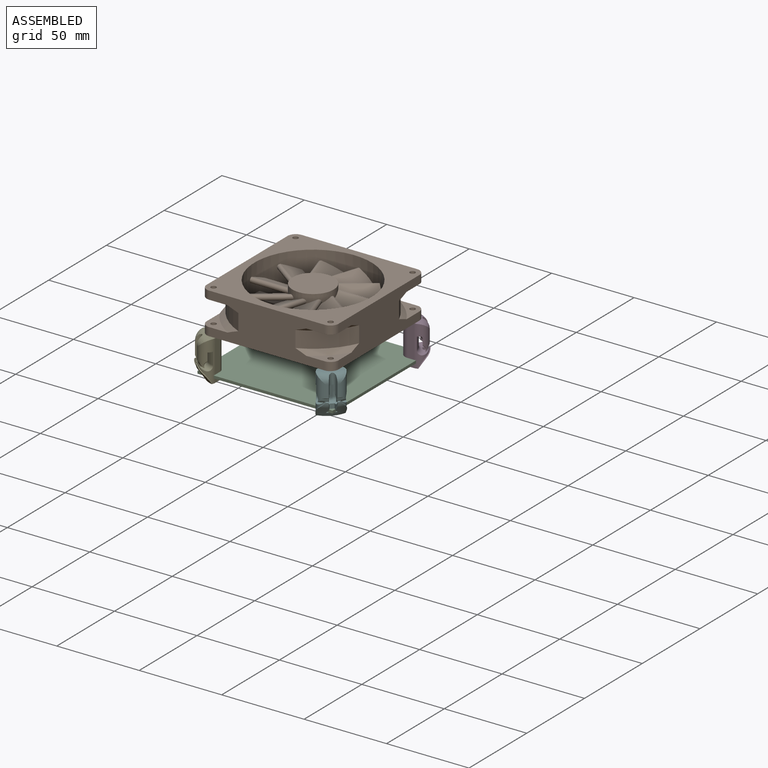
[diagram: assembled view]
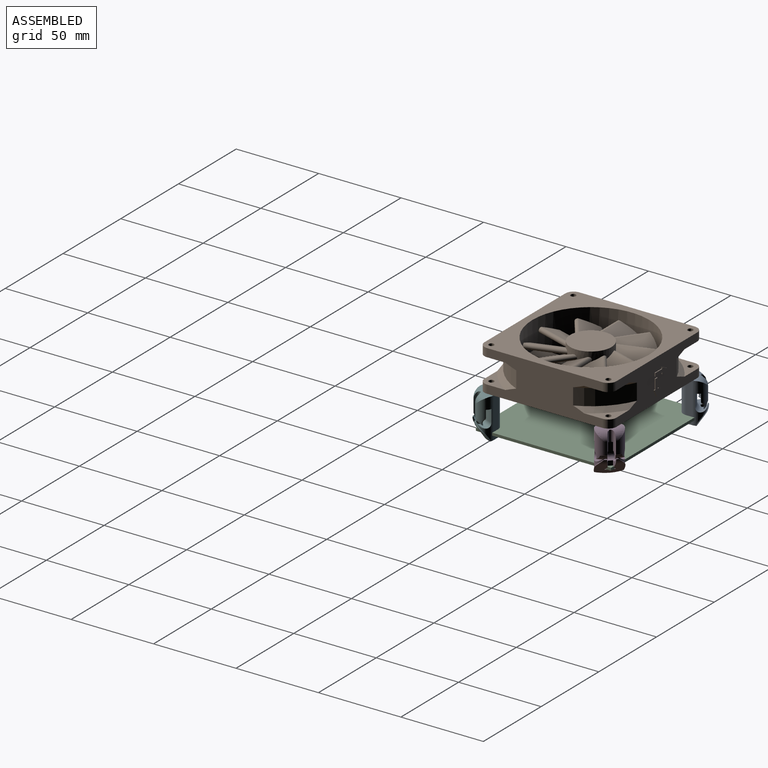
[diagram: assembled view, second angle]
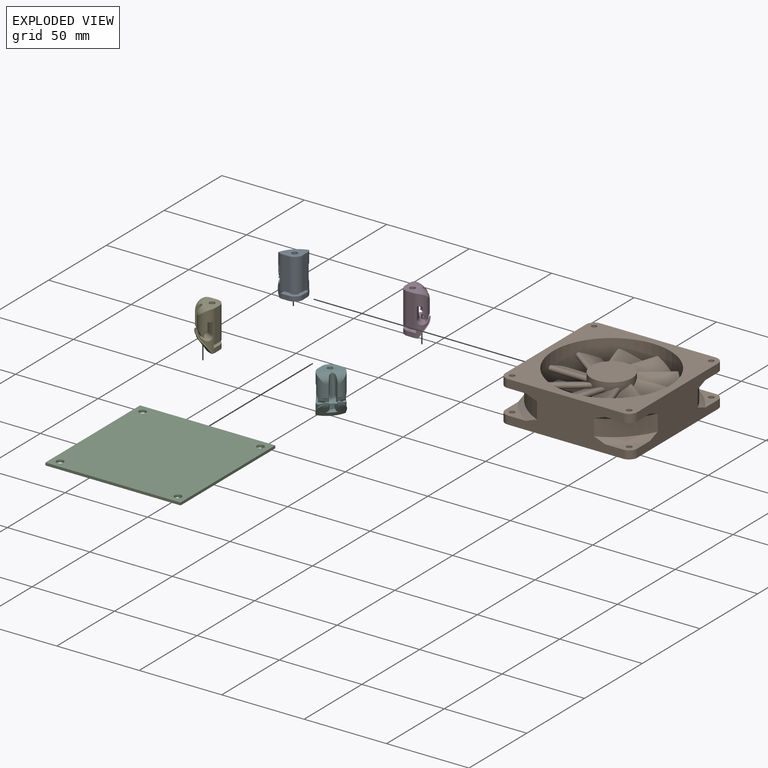
[diagram: exploded view]
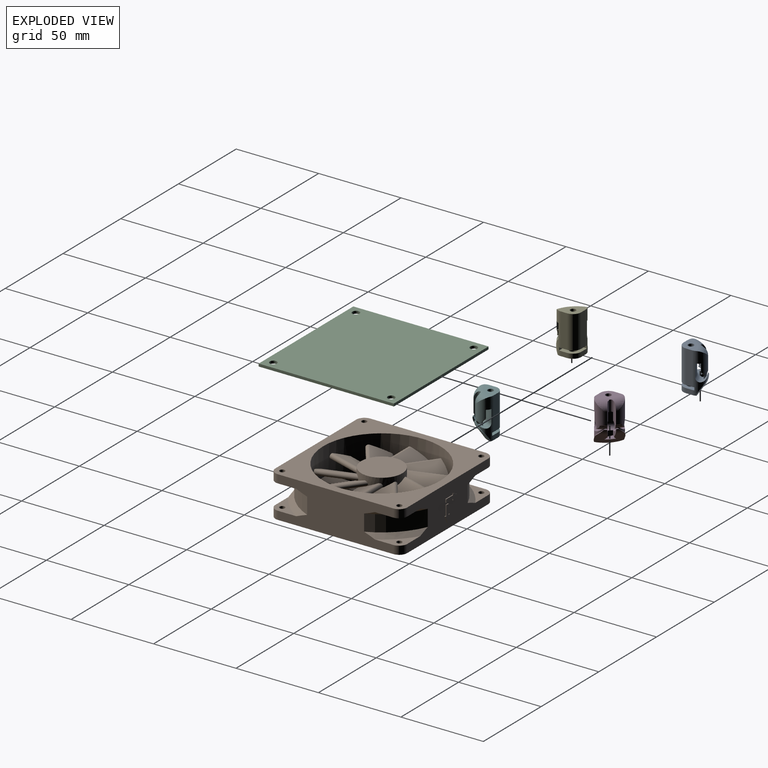
[diagram: exploded view, second angle]
ASSEMBLY  parts=6 mates=3
PART A: 74 faces, bbox 17.8x17.8x24.8 mm
  f0: plane 3.84x2.8mm, normal (1,0,0), area 10.7mm2, adj f2,f4,f35,f65
  f1: plane 3.84x2.8mm, normal (0,1,0), area 10.7mm2, adj f3,f4,f35,f65
  f2: cylinder r=5mm len=24.5mm, axis (0,0,-1), area 151.7mm2, adj f0,f13,f14,f16,f17,f18,f20,f21
  f3: cylinder r=5mm len=24.5mm, axis (0,0,-1), area 151.7mm2, adj f1,f6,f7,f8,f9,f10,f11,f12
  f4: cylinder r=5mm len=5mm, axis (0,0,1), area 22mm2, adj f0,f1,f35,f65
  f5: cylinder r=2.3mm len=4.6mm, axis (0,0,-1), area 40.5mm2, adj f35,f65
  f6: cylinder r=19mm len=7.82mm, axis (0,0,-1), area 12.9mm2, adj f3,f11,f18,f32
  f7: cylinder r=19mm len=1.33mm, axis (0,0,-1), area 0.4mm2, adj f3,f12,f28,f53,f71
  f8: cylinder r=16.28mm len=5.98mm, axis (0,0,1), area 33.1mm2, adj f3,f9,f22,f73
  f9: revolved ~6.48x3.89mm, area 1.3mm2, adj f3,f8,f39,f40,f73
  f10: revolved ~5.92x3.95mm, area 13.1mm2, adj f3,f32,f41,f70
  f11: revolved ~2.83x1.96mm, area 0.7mm2, adj f3,f6,f32,f70
  f12: revolved ~1.65x1.19mm, area 0.1mm2, adj f3,f7,f20,f28
  f13: cylinder r=19mm len=7.82mm, axis (0,0,-1), area 10.6mm2, adj f2,f18,f26,f31
  f14: plane 20x3.84mm, normal (1,0,0), area 76.7mm2, adj f2,f17,f19,f36
  f15: plane 20x3.84mm, normal (0,1,0), area 76.7mm2, adj f3,f17,f19,f36
  f16: cylinder r=19mm len=1.1mm, axis (0,0,-1), area 0.4mm2, adj f2,f27,f29,f58,f68
  f17: plane 10.83x10.83mm, normal (0,0,1), area 69mm2, adj f2,f3,f14,f15,f18,f19,f37
  f18: torus R=14mm, axis (0,0,1), area 78.2mm2, adj f2,f3,f6,f13,f17,f31,f32,f72
  f19: cylinder r=5mm len=20mm, axis (0,0,1), area 157.1mm2, adj f14,f15,f17,f36
  f20: revolved ~15.7x15.17mm, area 106.9mm2, adj f2,f3,f12,f21,f27,f28,f29,f30
  f21: cylinder r=13.58mm len=10.18mm, axis (0,0,1), area 112mm2, adj f2,f3,f20,f22
  f22: plane 12.52x12.52mm, normal (0,0,-1), area 41.8mm2, adj f2,f3,f8,f21,f23,f72,f73
  f23: cylinder r=16.28mm len=5.81mm, axis (0,0,1), area 32.1mm2, adj f2,f22,f24,f72
  f24: revolved ~6.12x3.78mm, area 1.3mm2, adj f2,f23,f43,f46,f72
  f25: revolved ~5.41x3.94mm, area 12.4mm2, adj f2,f31,f45,f69
  f26: revolved ~2.56x1.82mm, area 0.6mm2, adj f2,f13,f31,f69
  f27: revolved ~1.42x1.01mm, area 0mm2, adj f2,f16,f20,f29
  f28: plane 5.68x2.86mm, normal (0.51,-0.86,0), area 6.5mm2, adj f7,f12,f20,f30,f36,f51,f52
  f29: plane 5.83x2.93mm, normal (-0.87,0.49,0), area 6.5mm2, adj f16,f20,f27,f30,f34,f36,f59,f60
  f30: plane 2.84x1.9mm, normal (-0.7,-0.71,0), area 7.6mm2, adj f20,f28,f29,f36
  f31: plane 14.67x1.76mm, normal (-0.87,0.49,0), area 21.3mm2, adj f13,f18,f25,f26,f46,f69,f72
  f32: plane 14.66x1.73mm, normal (0.51,-0.86,0), area 20.8mm2, adj f6,f10,f11,f18,f40,f70,f73
  f33: plane 7.79x1.81mm, normal (1,0,0), area 11.5mm2, adj f3,f35,f36,f49
  f34: plane 7.62x1.79mm, normal (0,1,0), area 11.5mm2, adj f2,f29,f35,f36,f61
  f35: plane 10x10mm, normal (0,0,1), area 70.7mm2, adj f0,f1,f2,f3,f4,f5,f33,f34
  f36: plane 10x10mm, normal (0,0,-1), area 80.4mm2, adj f2,f3,f14,f15,f19,f28,f29,f30
  f37: cylinder r=1.7mm len=20mm, axis (0,0,-1), area 213.6mm2, adj f17,f36
  f38: bspline ~3.92x1.76mm, area 2.2mm2, adj f3,f39,f41,f42,f67
  f39: cone r=16.46mm half-angle=36.7deg, axis (0,0,1), area 3.2mm2, adj f9,f38,f40,f42
  f40: bspline ~4.22x1.54mm, area 2.1mm2, adj f9,f32,f39,f41,f42,f67,f73
  f41: cone r=17.44mm half-angle=65deg, axis (0,0,-1), area 0.2mm2, adj f10,f38,f40,f67
  f42: revolved ~6.43x4.01mm, area 18.4mm2, adj f38,f39,f40,f67
  f43: cone r=16.46mm half-angle=36.7deg, axis (0,0,1), area 3.1mm2, adj f24,f44,f46,f47
  f44: bspline ~3.92x1.76mm, area 2.2mm2, adj f2,f43,f45,f47,f66
  f45: cone r=17.44mm half-angle=65deg, axis (0,0,-1), area 0.2mm2, adj f25,f44,f46,f66
  f46: bspline ~4.2x1.55mm, area 2.1mm2, adj f24,f31,f43,f45,f47,f66,f72
  f47: revolved ~5.94x4.01mm, area 17.7mm2, adj f43,f44,f46,f66
  f48: cone r=15.49mm half-angle=56.6deg, axis (0,0,-1), area 2.9mm2, adj f35,f49,f61,f62
  f49: bspline ~2.15x1.98mm, area 1.3mm2, adj f33,f48,f50,f62
  f50: cone r=16.63mm half-angle=55.9deg, axis (0,0,-1), area 0mm2, adj f36,f49,f51,f62
  f51: bspline ~2.41x1.59mm, area 1.3mm2, adj f28,f50,f52,f62
  f52: bspline ~3.73x1.18mm, area 1.7mm2, adj f28,f51,f64,f71
  f53: bspline ~4.17x3.73mm, area 2.5mm2, adj f3,f7,f54,f64,f71
  f54: bspline ~6.7x4.24mm, area 4.1mm2, adj f3,f53,f55,f62
  f55: extruded ~0.5x0.28mm, area 0mm2, adj f3,f54,f62
  f56: extruded ~0.5x0.28mm, area 0mm2, adj f2,f57,f62
  f57: bspline ~6.7x4.24mm, area 4.1mm2, adj f2,f56,f58,f62
  f58: bspline ~4.17x3.73mm, area 2.5mm2, adj f2,f16,f57,f63,f68
  f59: bspline ~3.73x1.2mm, area 1.7mm2, adj f29,f60,f63,f68
  f60: bspline ~2.56x1.71mm, area 1.4mm2, adj f29,f59,f61,f62
  f61: bspline ~1.99x1.83mm, area 1.2mm2, adj f34,f48,f60,f62
  f62: torus R=149.06mm, axis (0,0,1), area 103.4mm2, adj f48,f49,f50,f51,f54,f55,f56,f57
  f63: torus R=14mm, axis (0,0,1), area 10.6mm2, adj f58,f59,f62,f68
  f64: torus R=14mm, axis (0,0,1), area 11.6mm2, adj f52,f53,f62,f71
  f65: plane 11.09x11.09mm, normal (0,0,-1), area 65.8mm2, adj f0,f1,f2,f3,f4,f5,f62
  f66: torus R=17.62mm, axis (0,0,1), area 3.8mm2, adj f44,f45,f46,f47
  f67: torus R=17.62mm, axis (0,0,1), area 3.9mm2, adj f38,f40,f41,f42
  f68: torus R=19.5mm, axis (0,0,-1), area 0.8mm2, adj f16,f58,f59,f63
  f69: torus R=19.16mm, axis (0,0,1), area 1.2mm2, adj f2,f25,f26,f31
  f70: torus R=19.16mm, axis (0,0,1), area 1.3mm2, adj f3,f10,f11,f32
  f71: torus R=19.5mm, axis (0,0,-1), area 1.1mm2, adj f7,f52,f53,f64
  f72: cylinder r=2mm len=12.23mm, axis (0,0,-1), area 20mm2, adj f18,f22,f23,f24,f31,f46,f73
  f73: cylinder r=2mm len=12.29mm, axis (0,0,1), area 20.4mm2, adj f8,f9,f18,f22,f32,f40,f72
PART B: 133 faces, bbox 85.6x25.1x85.6 mm
  f0: plane 23.66x7.81mm, normal (0,-1,0), area 180.7mm2, adj f4,f39,f40,f115
  f1: plane 23.66x8mm, normal (0,-1,0), area 185.1mm2, adj f4,f48,f49,f115
  f2: plane 23.66x8.14mm, normal (0,-1,0), area 185.1mm2, adj f4,f45,f46,f115
  f3: plane 23.66x8mm, normal (0,-1,0), area 185.1mm2, adj f4,f42,f43,f115
  f4: cylinder r=35.5mm len=71mm, axis (0,1,0), area 5321.3mm2, adj f0,f1,f2,f3,f17,f18,f39,f40
  f5: plane 70x25mm, normal (0,0,1), area 1212.6mm2, adj f17,f18,f19,f20,f21,f22,f23,f34
  f6: plane 70x25mm, normal (-1,0,0), area 1252.6mm2, adj f17,f18,f29,f30,f31,f32,f33,f34
  f7: plane 70x25mm, normal (0,0,-1), area 1252.6mm2, adj f17,f18,f24,f25,f26,f27,f28,f29
  f8: cylinder r=1.6mm len=5mm, axis (0,1,0), area 50.3mm2, adj f18,f23
  f9: cylinder r=1.6mm len=5mm, axis (0,1,0), area 50.3mm2, adj f17,f19
  f10: cylinder r=1.6mm len=5mm, axis (0,1,0), area 50.3mm2, adj f18,f28
  f11: cylinder r=1.6mm len=5mm, axis (0,1,0), area 50.3mm2, adj f17,f24
  f12: cylinder r=1.6mm len=5mm, axis (0,1,0), area 50.3mm2, adj f18,f34
  f13: cylinder r=1.6mm len=5mm, axis (0,1,0), area 50.3mm2, adj f17,f38
  f14: cylinder r=1.6mm len=5mm, axis (0,1,0), area 50.3mm2, adj f18,f29
  f15: cylinder r=1.6mm len=5mm, axis (0,1,0), area 50.3mm2, adj f17,f30
  f16: plane 70x25mm, normal (1,0,0), area 1252.6mm2, adj f17,f18,f19,f20,f21,f22,f23,f24
  f17: plane 80x80mm, normal (0,-1,0), area 2387.2mm2, adj f4,f5,f6,f7,f9,f11,f13,f15
  f18: plane 80x80mm, normal (0,1,0), area 3518.7mm2, adj f4,f5,f6,f7,f8,f10,f12,f14
  f19: plane 16.15x16.15mm, normal (0,1,0), area 95.3mm2, adj f5,f9,f16,f20,f58
  f20: cone r=46.57mm half-angle=50deg, axis (0,-1,0), area 108.7mm2, adj f5,f16,f19,f21
  f21: cylinder r=43.57mm len=22.73mm, axis (0,-1,0), area 328.1mm2, adj f5,f16,f20,f22
  f22: cone r=43.57mm half-angle=50deg, axis (0,1,0), area 108.7mm2, adj f5,f16,f21,f23
  f23: plane 16.15x16.15mm, normal (0,-1,0), area 95.3mm2, adj f5,f8,f16,f22,f54
  f24: plane 16.15x16.15mm, normal (0,1,0), area 95.3mm2, adj f7,f11,f16,f25,f57
  f25: cone r=46.57mm half-angle=50deg, axis (0,-1,0), area 108.7mm2, adj f7,f16,f24,f26
  f26: cylinder r=43.57mm len=22.73mm, axis (0,-1,0), area 328.1mm2, adj f7,f16,f25,f27
  f27: cone r=43.57mm half-angle=50deg, axis (0,1,0), area 108.7mm2, adj f7,f16,f26,f28
  f28: plane 16.15x16.15mm, normal (0,-1,0), area 95.3mm2, adj f7,f10,f16,f27,f53
  f29: plane 16.15x16.15mm, normal (0,-1,0), area 95.3mm2, adj f6,f7,f14,f33,f52
  f30: plane 16.15x16.15mm, normal (0,1,0), area 95.3mm2, adj f6,f7,f15,f31,f56
  f31: cone r=46.57mm half-angle=50deg, axis (0,-1,0), area 108.7mm2, adj f6,f7,f30,f32
  f32: cylinder r=43.57mm len=22.73mm, axis (0,-1,0), area 328.1mm2, adj f6,f7,f31,f33
  f33: cone r=43.57mm half-angle=50deg, axis (0,1,0), area 108.7mm2, adj f6,f7,f29,f32
  f34: plane 16.15x16.15mm, normal (0,-1,0), area 95.3mm2, adj f5,f6,f12,f35,f51
  f35: cone r=43.57mm half-angle=50deg, axis (0,1,0), area 108.7mm2, adj f5,f6,f34,f36
  f36: cylinder r=43.57mm len=22.73mm, axis (0,-1,0), area 328.1mm2, adj f5,f6,f35,f37
  f37: cone r=46.57mm half-angle=50deg, axis (0,-1,0), area 108.7mm2, adj f5,f6,f36,f38
  f38: plane 16.15x16.15mm, normal (0,1,0), area 95.3mm2, adj f5,f6,f13,f37,f55
  f39: plane 26.11x8mm, normal (0,0,1), area 208.9mm2, adj f0,f4,f18,f50,f59
  f40: plane 26.05x8mm, normal (0,0,-1), area 208.4mm2, adj f0,f4,f18,f41,f114
  f41: cylinder r=10mm len=8mm, axis (0,1,0), area 61.5mm2, adj f18,f40,f42,f114
  f42: plane 26.11x8mm, normal (1,0,0), area 208.9mm2, adj f3,f4,f18,f41,f114
  f43: plane 26.11x8mm, normal (-1,0,0), area 208.9mm2, adj f3,f4,f18,f44,f61
  f44: cylinder r=10mm len=8mm, axis (0,1,0), area 59.8mm2, adj f18,f43,f45,f61
  f45: plane 26.09x8mm, normal (0.01,0,-1), area 208.7mm2, adj f2,f4,f18,f44,f61
  f46: plane 26.13x8mm, normal (-0.01,0,1), area 209mm2, adj f2,f4,f18,f47,f60
  f47: cylinder r=10mm len=8mm, axis (0,1,0), area 59.8mm2, adj f18,f46,f48,f60
  f48: plane 26.11x8mm, normal (-1,0,0), area 208.9mm2, adj f1,f4,f18,f47,f60
  f49: plane 26.11x8mm, normal (1,0,0), area 208.9mm2, adj f1,f4,f18,f50,f59
  f50: cylinder r=10mm len=8mm, axis (0,1,0), area 59.8mm2, adj f18,f39,f49,f59
  f51: cylinder r=5mm len=5mm, axis (0,-1,0), area 39.3mm2, adj f5,f6,f18,f34
  f52: cylinder r=5mm len=5mm, axis (0,1,0), area 39.3mm2, adj f6,f7,f18,f29
  f53: cylinder r=5mm len=5mm, axis (0,-1,0), area 39.3mm2, adj f7,f16,f18,f28
  f54: cylinder r=5mm len=5mm, axis (0,1,0), area 39.3mm2, adj f5,f16,f18,f23
  f55: cylinder r=5mm len=5mm, axis (0,-1,0), area 39.3mm2, adj f5,f6,f17,f38
  f56: cylinder r=5mm len=5mm, axis (0,1,0), area 39.3mm2, adj f6,f7,f17,f30
  f57: cylinder r=5mm len=5mm, axis (0,-1,0), area 39.3mm2, adj f7,f16,f17,f24
  f58: cylinder r=5mm len=5mm, axis (0,1,0), area 39.3mm2, adj f5,f16,f17,f19
  f59: plane 7.84x7.84mm, normal (0,1,0), area 23.7mm2, adj f39,f49,f50,f115
  f60: plane 7.86x7.85mm, normal (0,1,0), area 23.7mm2, adj f46,f47,f48,f115
  f61: plane 7.84x7.84mm, normal (0,1,0), area 23.7mm2, adj f43,f44,f45,f115
  f62: cylinder r=12.5mm len=25mm, axis (0,1,0), area 311mm2, adj f63,f64,f66,f68,f70,f72,f74,f76
  f63: plane 25x25mm, normal (0,-1,0), area 490.9mm2, adj f62
  f64: cylinder r=1.5mm len=23.39mm, axis (-1,0,0), area 107.2mm2, adj f62,f84,f85,f86,f113
  f65: cylinder r=1.5mm len=22.58mm, axis (1,0,0), area 104mm2, adj f84,f85,f86,f115
  f66: cylinder r=1.5mm len=20.15mm, axis (-0.81,0,0.59), area 107.2mm2, adj f62,f86,f87,f88,f89
  f67: cylinder r=1.5mm len=19.5mm, axis (0.81,0,-0.59), area 104mm2, adj f87,f88,f89,f115
  f68: cylinder r=1.5mm len=22.89mm, axis (-0.31,0,0.95), area 107.2mm2, adj f62,f89,f90,f91,f92
  f69: cylinder r=1.5mm len=22.12mm, axis (0.31,0,-0.95), area 104mm2, adj f90,f91,f92,f115
  f70: cylinder r=1.5mm len=22.89mm, axis (0.31,0,0.95), area 107.2mm2, adj f62,f92,f93,f94,f95
  f71: cylinder r=1.5mm len=22.12mm, axis (-0.31,0,-0.95), area 104mm2, adj f93,f94,f95,f115
  f72: cylinder r=1.5mm len=20.15mm, axis (0.81,0,0.59), area 107.2mm2, adj f62,f95,f96,f97,f98
  f73: cylinder r=1.5mm len=19.5mm, axis (-0.81,0,-0.59), area 104mm2, adj f96,f97,f98,f115
  f74: cylinder r=1.5mm len=23.39mm, axis (1,0,0), area 107.2mm2, adj f62,f98,f99,f100,f101
  f75: cylinder r=1.5mm len=22.58mm, axis (-1,0,0), area 104mm2, adj f99,f100,f101,f115
  f76: cylinder r=1.5mm len=20.15mm, axis (0.81,0,-0.59), area 107.2mm2, adj f62,f101,f102,f103,f104
  f77: cylinder r=1.5mm len=19.5mm, axis (-0.81,0,0.59), area 104mm2, adj f102,f103,f104,f115
  f78: cylinder r=1.5mm len=22.89mm, axis (0.31,0,-0.95), area 107.2mm2, adj f62,f104,f105,f106,f107
  f79: cylinder r=1.5mm len=22.12mm, axis (-0.31,0,0.95), area 104mm2, adj f105,f106,f107,f115
  f80: cylinder r=1.5mm len=22.89mm, axis (-0.31,0,-0.95), area 107.2mm2, adj f62,f107,f108,f109,f110
  f81: cylinder r=1.5mm len=22.12mm, axis (0.31,0,0.95), area 104mm2, adj f108,f109,f110,f115
  f82: cylinder r=1.5mm len=20.15mm, axis (-0.81,0,-0.59), area 107.2mm2, adj f62,f110,f111,f112,f113
  f83: cylinder r=1.5mm len=19.5mm, axis (0.81,0,0.59), area 104mm2, adj f111,f112,f113,f115
  f84: cylinder r=33.84mm len=14.97mm, axis (0,-0.92,-0.39), area 43.4mm2, adj f64,f65,f85,f86
  f85: plane 23.06x11.03mm, normal (0,0.92,0.39), area 259.6mm2, adj f64,f65,f84,f113,f115
  f86: plane 22.69x11.1mm, normal (0,-0.92,-0.39), area 258.8mm2, adj f62,f64,f65,f66,f84,f88,f115
  f87: cylinder r=33.84mm len=12.11mm, axis (-0.23,-0.92,-0.32), area 43.4mm2, adj f66,f67,f88,f89
  f88: plane 23.94x22.16mm, normal (0.23,0.92,0.32), area 259.6mm2, adj f66,f67,f86,f87,f115
  f89: plane 24.42x21.97mm, normal (-0.23,-0.92,-0.32), area 258.8mm2, adj f62,f66,f67,f68,f87,f91,f115
  f90: cylinder r=33.84mm len=14.24mm, axis (-0.37,-0.92,-0.12), area 43.4mm2, adj f68,f69,f91,f92
  f91: plane 24.83x17.16mm, normal (0.37,0.92,0.12), area 259.6mm2, adj f68,f69,f89,f90,f115
  f92: plane 24.48x17.38mm, normal (-0.37,-0.92,-0.12), area 258.8mm2, adj f62,f68,f69,f70,f90,f94,f115
  f93: cylinder r=33.84mm len=14.24mm, axis (-0.37,-0.92,0.12), area 43.4mm2, adj f70,f71,f94,f95
  f94: plane 23.93x17.45mm, normal (0.37,0.92,-0.12), area 259.6mm2, adj f70,f71,f92,f93,f115
  f95: plane 24.48x17.38mm, normal (-0.37,-0.92,0.12), area 258.8mm2, adj f62,f70,f71,f72,f93,f97,f115
  f96: cylinder r=33.84mm len=12.11mm, axis (-0.23,-0.92,0.32), area 43.4mm2, adj f72,f73,f97,f98
  f97: plane 24.71x21.61mm, normal (0.23,0.92,-0.32), area 259.6mm2, adj f72,f73,f95,f96,f115
  f98: plane 24.42x21.97mm, normal (-0.23,-0.92,0.32), area 258.8mm2, adj f62,f72,f73,f74,f96,f100,f115
  f99: cylinder r=33.84mm len=14.97mm, axis (0,-0.92,0.39), area 43.4mm2, adj f74,f75,f100,f101
  f100: plane 23.06x11.03mm, normal (0,0.92,-0.39), area 259.6mm2, adj f74,f75,f98,f99,f115
  f101: plane 22.69x11.1mm, normal (0,-0.92,0.39), area 258.8mm2, adj f62,f74,f75,f76,f99,f103,f115
  f102: cylinder r=33.84mm len=12.11mm, axis (0.23,-0.92,0.32), area 43.4mm2, adj f76,f77,f103,f104
  f103: plane 23.94x22.16mm, normal (-0.23,0.92,-0.32), area 259.6mm2, adj f76,f77,f101,f102,f115
  f104: plane 24.42x21.97mm, normal (0.23,-0.92,0.32), area 258.8mm2, adj f62,f76,f77,f78,f102,f106,f115
  f105: cylinder r=33.84mm len=14.24mm, axis (0.37,-0.92,0.12), area 43.4mm2, adj f78,f79,f106,f107
  f106: plane 24.83x17.16mm, normal (-0.37,0.92,-0.12), area 259.6mm2, adj f78,f79,f104,f105,f115
  f107: plane 24.48x17.38mm, normal (0.37,-0.92,0.12), area 258.8mm2, adj f62,f78,f79,f80,f105,f109,f115,f116
  f108: cylinder r=33.84mm len=14.24mm, axis (0.37,-0.92,-0.12), area 43.4mm2, adj f80,f81,f109,f110
  f109: plane 23.97x17.49mm, normal (-0.37,0.92,0.12), area 259.6mm2, adj f80,f81,f107,f108,f115,f116
  f110: plane 24.48x17.38mm, normal (0.37,-0.92,-0.12), area 258.8mm2, adj f62,f80,f81,f82,f108,f112,f115
  f111: cylinder r=33.84mm len=12.11mm, axis (0.23,-0.92,-0.32), area 43.4mm2, adj f82,f83,f112,f113
  f112: plane 24.71x21.61mm, normal (-0.23,0.92,0.32), area 259.6mm2, adj f82,f83,f110,f111,f115
  f113: plane 24.42x21.97mm, normal (0.23,-0.92,-0.32), area 258.8mm2, adj f62,f64,f82,f83,f85,f111,f115
  f114: plane 8.03x7.91mm, normal (0,1,0), area 24.2mm2, adj f40,f41,f42,f115
  f115: cylinder r=12.5mm len=25mm, axis (0,1,0), area 413.3mm2, adj f0,f1,f2,f3,f59,f60,f61,f65
  f116: cylinder r=12.5mm len=2.6mm, axis (0,1,0), area 0.1mm2, adj f107,f109,f115
  f117: plane 4x2mm, normal (-0.45,0.89,0), area 2.2mm2, adj f5,f118,f123,f124
  f118: plane 4x2mm, normal (-0.45,-0.89,0), area 2.2mm2, adj f5,f117,f119,f124
  f119: plane 1x0.5mm, normal (1,0,0), area 0.5mm2, adj f5,f118,f120,f124
  f120: plane 6x0.5mm, normal (0,-1,0), area 3mm2, adj f5,f119,f121,f124
  f121: plane 2x0.5mm, normal (1,0,0), area 1mm2, adj f5,f120,f122,f124
  f122: plane 6x0.5mm, normal (0,1,0), area 3mm2, adj f5,f121,f123,f124
  f123: plane 1x0.5mm, normal (1,0,0), area 0.5mm2, adj f5,f117,f122,f124
  f124: plane 10x4mm, normal (0,0,1), area 20mm2, adj f117,f118,f119,f120,f121,f122,f123
  f125: plane 4x2mm, normal (0.89,0.45,0), area 2.2mm2, adj f5,f126,f131,f132
  f126: plane 4x2mm, normal (-0.89,0.45,0), area 2.2mm2, adj f5,f125,f127,f132
  f127: plane 1x0.5mm, normal (0,-1,0), area 0.5mm2, adj f5,f126,f128,f132
  f128: plane 6x0.5mm, normal (-1,0,0), area 3mm2, adj f5,f127,f129,f132
  f129: plane 2x0.5mm, normal (0,-1,0), area 1mm2, adj f5,f128,f130,f132
  f130: plane 6x0.5mm, normal (1,0,0), area 3mm2, adj f5,f129,f131,f132
  f131: plane 1x0.5mm, normal (0,-1,0), area 0.5mm2, adj f5,f125,f130,f132
  f132: plane 10x4mm, normal (0,0,1), area 20mm2, adj f125,f126,f127,f128,f129,f130,f131
PART C: 10 faces, bbox 82x82x1.6 mm
  f0: plane 82x1.6mm, normal (0,1,0), area 131.2mm2, adj f1,f3,f4,f5
  f1: plane 82x1.6mm, normal (-1,0,0), area 131.2mm2, adj f0,f2,f4,f5
  f2: plane 82x1.6mm, normal (0,-1,0), area 131.2mm2, adj f1,f3,f4,f5
  f3: plane 82x1.6mm, normal (1,0,0), area 131.2mm2, adj f0,f2,f4,f5
  f4: plane 82x82mm, normal (0,0,-1), area 6665.9mm2, adj f0,f1,f2,f3,f6,f7,f8,f9
  f5: plane 82x82mm, normal (0,0,1), area 6665.9mm2, adj f0,f1,f2,f3,f6,f7,f8,f9
  f6: cylinder r=2.15mm len=4.3mm, axis (0,0,1), area 21.6mm2, adj f4,f5
  f7: cylinder r=2.15mm len=4.3mm, axis (0,0,1), area 21.6mm2, adj f4,f5
  f8: cylinder r=2.15mm len=4.3mm, axis (0,0,1), area 21.6mm2, adj f4,f5
  f9: cylinder r=2.15mm len=4.3mm, axis (0,0,1), area 21.6mm2, adj f4,f5
PART D: same geometry as A
PART E: same geometry as A
PART F: same geometry as A
PLACE A rot(axis=(0,0,-1),90deg) t=(-29.28,-15.39,3.17)mm
PLACE B rot(axis=(-1,0,0),90deg) t=(-29.03,-15.14,23.17)mm
PLACE C t=(-29.28,-15.39,3.07)mm
PLACE D rot(axis=(0,0,1),180deg) t=(-29.28,-15.39,3.17)mm
PLACE E t=(-29.28,-15.39,3.17)mm
PLACE F rot(axis=(0,0,1),90deg) t=(-29.28,-15.39,3.07)mm
MATE fastened A.f5 <-> C.f9  axis (0,0,1) through (-65.03,20.36,1.47)mm
MATE fastened D.f5 <-> C.f8  axis (0,0,1) through (6.47,20.36,1.47)mm
MATE fastened E.f5 <-> C.f6  axis (0,0,-1) through (-65.03,-51.14,1.47)mm
